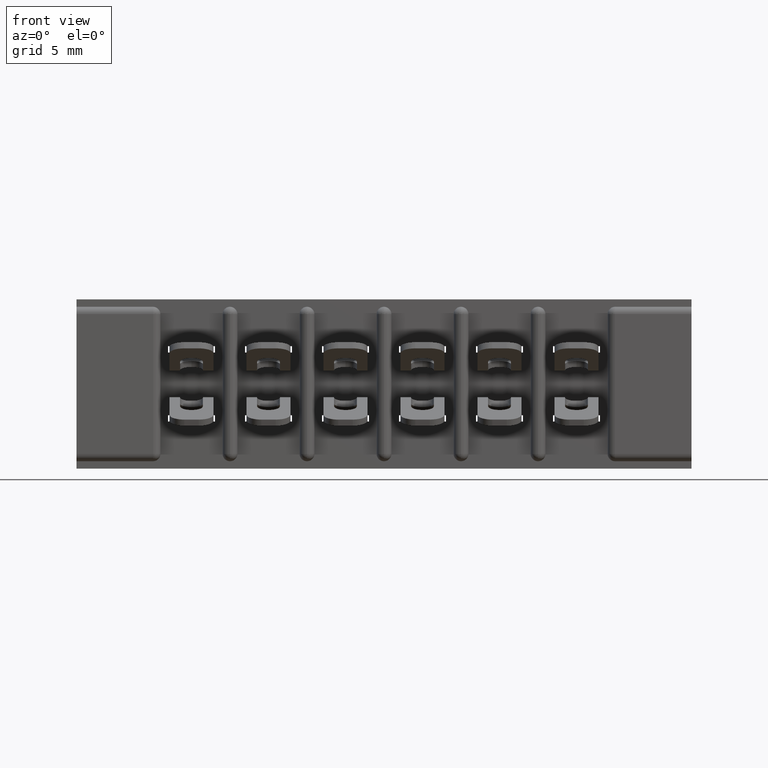
[diagram: clean part render]
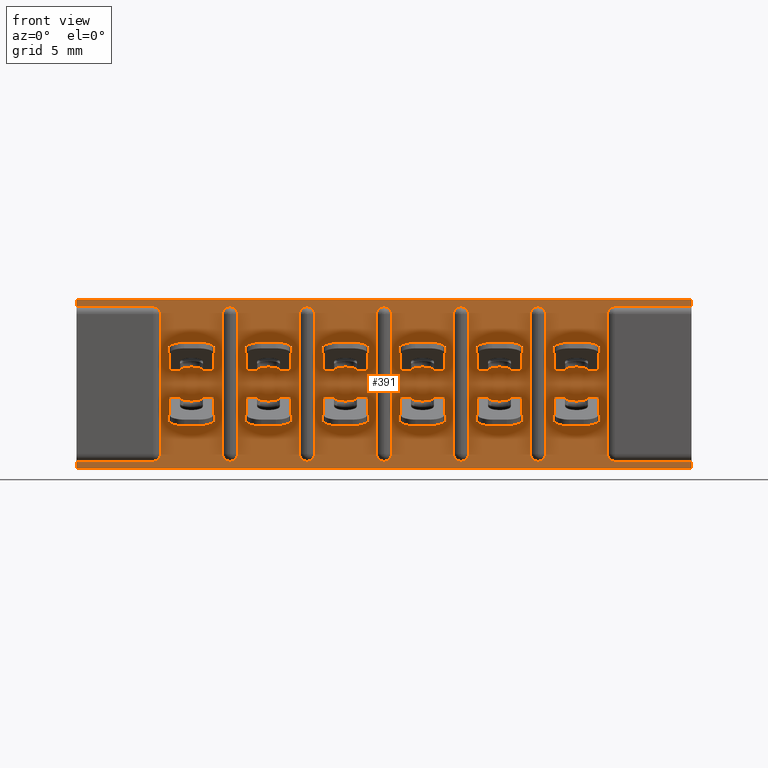
[diagram: same view with one face highlighted and labeled with its STEP entity id]
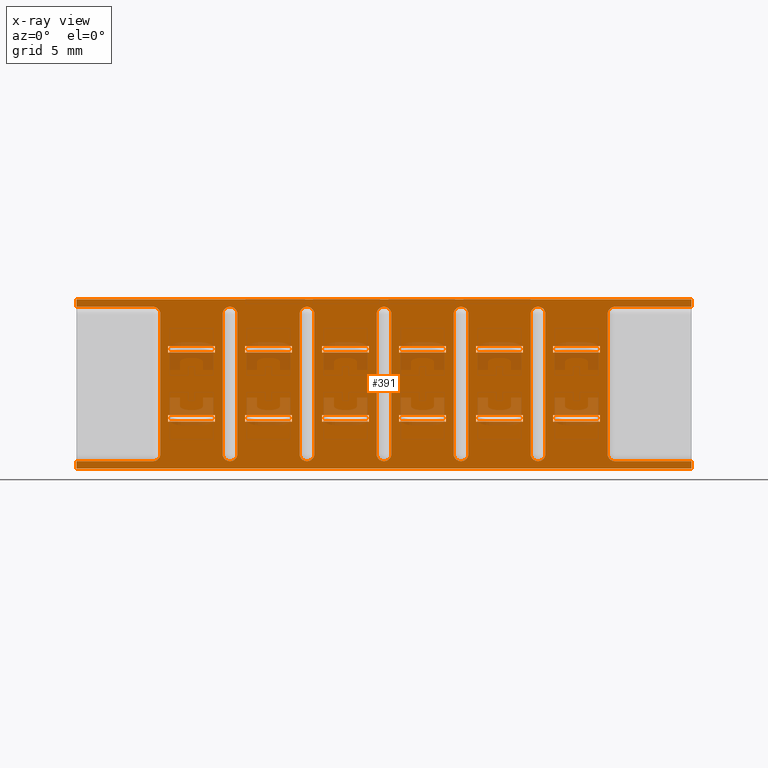
[diagram: x-ray of the same camera — body ghosted, the highlighted face saturated]
A machine part, front view. The second image highlights one B-rep face of the part: STEP entity #391.
The next image is the same camera in x-ray: the body ghosted, the highlighted face saturated — about 12% of this face is hidden behind the body in this view.
In plain terms, the highlighted planar face has unit normal (0, 1, 0).
Its self-contained STEP definition (entity closure, byte-faithful):
#5 = EDGE_CURVE ( 'NONE', #4426, #7489, #7232, .T. ) ;
#9 = VERTEX_POINT ( 'NONE', #8492 ) ;
#14 = DIRECTION ( 'NONE',  ( 0.0000000000000000000, 0.0000000000000000000, 1.000000000000000000 ) ) ;
#23 = CARTESIAN_POINT ( 'NONE',  ( 0.2979999999999999300, 0.03100000000000000000, -0.01499999999999997700 ) ) ;
#28 = CARTESIAN_POINT ( 'NONE',  ( 1.046500000000002000, 0.03100000000000002400, -0.05850000000000024600 ) ) ;
#39 = VERTEX_POINT ( 'NONE', #7835 ) ;
#55 = CARTESIAN_POINT ( 'NONE',  ( 0.9515000000000014600, 0.03100000000000000000, -0.09500000000000020900 ) ) ;
#111 = VERTEX_POINT ( 'NONE', #7807 ) ;
#115 = LINE ( 'NONE', #206, #10028 ) ;
#140 = EDGE_LOOP ( 'NONE', ( #2560, #8582, #5048, #10692 ) ) ;
#150 = ORIENTED_EDGE ( 'NONE', *, *, #173, .T. ) ;
#164 = ORIENTED_EDGE ( 'NONE', *, *, #1726, .T. ) ;
#173 = EDGE_CURVE ( 'NONE', #5584, #10307, #1230, .T. ) ;
#178 = DIRECTION ( 'NONE',  ( 0.0000000000000000000, -0.0000000000000000000, 1.000000000000000000 ) ) ;
#206 = CARTESIAN_POINT ( 'NONE',  ( 0.6395000000000015100, 0.03100000000000000000, -0.1080000000000002100 ) ) ;
#234 = ORIENTED_EDGE ( 'NONE', *, *, #8018, .T. ) ;
#238 = DIRECTION ( 'NONE',  ( -1.000000000000000000, 0.0000000000000000000, 1.078361050130624000E-015 ) ) ;
#239 = LINE ( 'NONE', #1396, #771 ) ;
#247 = LINE ( 'NONE', #7850, #5966 ) ;
#271 = VECTOR ( 'NONE', #8228, 39.37007874015748100 ) ;
#273 = VERTEX_POINT ( 'NONE', #1027 ) ;
#316 = DIRECTION ( 'NONE',  ( 0.0000000000000000000, 1.000000000000000000, 0.0000000000000000000 ) ) ;
#388 = LINE ( 'NONE', #7702, #8803 ) ;
#391 = ADVANCED_FACE ( 'NONE', ( #2565, #1219, #6139, #6944, #11238, #934, #4893, #2032, #10563, #8278, #5996, #8962, #7218, #4352, #3664, #8142, #5728, #1356 ), #3748, .F. ) ;
#397 = EDGE_CURVE ( 'NONE', #1757, #1095, #8676, .T. ) ;
#398 = CIRCLE ( 'NONE', #6381, 0.01499999999999999900 ) ;
#402 = VERTEX_POINT ( 'NONE', #7266 ) ;
#419 = LINE ( 'NONE', #2417, #5451 ) ;
#422 = ORIENTED_EDGE ( 'NONE', *, *, #2400, .F. ) ;
#431 = EDGE_CURVE ( 'NONE', #2196, #273, #7595, .T. ) ;
#457 = EDGE_CURVE ( 'NONE', #528, #4748, #5166, .T. ) ;
#467 = ORIENTED_EDGE ( 'NONE', *, *, #7904, .F. ) ;
#502 = CIRCLE ( 'NONE', #5126, 0.01500000000000001200 ) ;
#504 = CARTESIAN_POINT ( 'NONE',  ( 1.107500000000001500, 0.03100000000000000000, -0.1080000000000002100 ) ) ;
#510 = AXIS2_PLACEMENT_3D ( 'NONE', #1162, #8071, #10628 ) ;
#519 = ORIENTED_EDGE ( 'NONE', *, *, #5, .T. ) ;
#522 = VERTEX_POINT ( 'NONE', #6800 ) ;
#523 = CIRCLE ( 'NONE', #1457, 0.01500000000000001200 ) ;
#528 = VERTEX_POINT ( 'NONE', #1567 ) ;
#535 = CARTESIAN_POINT ( 'NONE',  ( 1.389000000000000200, 0.03100000000000000000, -0.3130000000000000600 ) ) ;
#549 = DIRECTION ( 'NONE',  ( 0.0000000000000000000, 0.0000000000000000000, -1.000000000000000000 ) ) ;
#565 = ORIENTED_EDGE ( 'NONE', *, *, #3847, .T. ) ;
#597 = CARTESIAN_POINT ( 'NONE',  ( 1.077000000000000200, 0.03100000000000000000, -0.3280000000000000100 ) ) ;
#610 = DIRECTION ( 'NONE',  ( 0.0000000000000000000, 1.000000000000000000, 0.0000000000000000000 ) ) ;
#633 = LINE ( 'NONE', #55, #7313 ) ;
#644 = EDGE_CURVE ( 'NONE', #7990, #5931, #7204, .T. ) ;
#645 = VECTOR ( 'NONE', #9806, 39.37007874015748100 ) ;
#650 = AXIS2_PLACEMENT_3D ( 'NONE', #8375, #6525, #9164 ) ;
#653 = CARTESIAN_POINT ( 'NONE',  ( 1.842000000000000700, 0.03100000000000000000, -0.3430000000000000300 ) ) ;
#664 = ORIENTED_EDGE ( 'NONE', *, *, #3644, .T. ) ;
#672 = VERTEX_POINT ( 'NONE', #8663 ) ;
#704 = AXIS2_PLACEMENT_3D ( 'NONE', #4365, #10400, #14 ) ;
#724 = EDGE_CURVE ( 'NONE', #7979, #7990, #523, .T. ) ;
#745 = VECTOR ( 'NONE', #178, 39.37007874015748100 ) ;
#748 = VERTEX_POINT ( 'NONE', #6201 ) ;
#757 = DIRECTION ( 'NONE',  ( 0.0000000000000000000, 1.000000000000000000, 0.0000000000000000000 ) ) ;
#771 = VECTOR ( 'NONE', #10975, 39.37007874015748100 ) ;
#780 = CIRCLE ( 'NONE', #10619, 0.01499999999999999900 ) ;
#786 = VECTOR ( 'NONE', #4256, 39.37007874015748100 ) ;
#826 = EDGE_CURVE ( 'NONE', #6339, #1202, #9495, .T. ) ;
#837 = CARTESIAN_POINT ( 'NONE',  ( 1.233000000000000300, 0.03100000000000000000, -0.3280000000000000100 ) ) ;
#859 = DIRECTION ( 'NONE',  ( 1.000000000000000000, -0.0000000000000000000, 1.797268416884331900E-015 ) ) ;
#893 = ORIENTED_EDGE ( 'NONE', *, *, #9144, .T. ) ;
#903 = EDGE_CURVE ( 'NONE', #8288, #6339, #115, .T. ) ;
#934 = FACE_BOUND ( 'NONE', #4652, .T. ) ;
#1002 = CIRCLE ( 'NONE', #6905, 0.01500000000000001200 ) ;
#1010 = EDGE_LOOP ( 'NONE', ( #4993, #10746, #10496, #8176, #2653, #164 ) ) ;
#1027 = CARTESIAN_POINT ( 'NONE',  ( 0.2979999999999999300, 0.03100000000000000000, -0.3430000000000000300 ) ) ;
#1039 = DIRECTION ( 'NONE',  ( -1.000000000000000000, -0.0000000000000000000, -0.0000000000000000000 ) ) ;
#1043 = EDGE_CURVE ( 'NONE', #1224, #4923, #7851, .T. ) ;
#1054 = EDGE_CURVE ( 'NONE', #10118, #6507, #3090, .T. ) ;
#1072 = DIRECTION ( 'NONE',  ( 0.0000000000000000000, -0.0000000000000000000, 1.000000000000000000 ) ) ;
#1095 = VERTEX_POINT ( 'NONE', #3111 ) ;
#1098 = VERTEX_POINT ( 'NONE', #8280 ) ;
#1101 = EDGE_CURVE ( 'NONE', #6326, #6033, #780, .T. ) ;
#1122 = VERTEX_POINT ( 'NONE', #1409 ) ;
#1124 = DIRECTION ( 'NONE',  ( 0.0000000000000000000, 1.000000000000000000, 0.0000000000000000000 ) ) ;
#1128 = CARTESIAN_POINT ( 'NONE',  ( 0.7345000000000019300, 0.03100000000000000000, -0.2480000000000000800 ) ) ;
#1139 = CARTESIAN_POINT ( 'NONE',  ( 1.263499999999999200, 0.03100000000000000000, -0.2480000000000002800 ) ) ;
#1154 = DIRECTION ( 'NONE',  ( 0.0000000000000000000, 1.000000000000000000, 0.0000000000000000000 ) ) ;
#1155 = VECTOR ( 'NONE', #1729, 39.37007874015748100 ) ;
#1162 = CARTESIAN_POINT ( 'NONE',  ( 1.842000000000000700, 0.03100000000000000000, -0.3430000000000000300 ) ) ;
#1180 = LINE ( 'NONE', #6078, #3192 ) ;
#1183 = VERTEX_POINT ( 'NONE', #8385 ) ;
#1197 = CARTESIAN_POINT ( 'NONE',  ( 1.389000000000000200, 0.03100000000000000000, -0.02999999999999997800 ) ) ;
#1202 = VERTEX_POINT ( 'NONE', #2502 ) ;
#1212 = LINE ( 'NONE', #3763, #2406 ) ;
#1219 = FACE_OUTER_BOUND ( 'NONE', #1936, .T. ) ;
#1224 = VERTEX_POINT ( 'NONE', #1584 ) ;
#1230 = LINE ( 'NONE', #9738, #2574 ) ;
#1231 = VERTEX_POINT ( 'NONE', #4229 ) ;
#1257 = VECTOR ( 'NONE', #10039, 39.37007874015748100 ) ;
#1260 = EDGE_CURVE ( 'NONE', #1095, #10167, #10829, .T. ) ;
#1263 = ORIENTED_EDGE ( 'NONE', *, *, #6685, .T. ) ;
#1265 = ORIENTED_EDGE ( 'NONE', *, *, #8662, .T. ) ;
#1268 = LINE ( 'NONE', #3206, #6190 ) ;
#1279 = CARTESIAN_POINT ( 'NONE',  ( 1.107499999999999300, 0.03100000000000000000, -0.2480000000000002800 ) ) ;
#1292 = EDGE_CURVE ( 'NONE', #2601, #3225, #5290, .T. ) ;
#1300 = VECTOR ( 'NONE', #3752, 39.37007874015748100 ) ;
#1356 = FACE_BOUND ( 'NONE', #8801, .T. ) ;
#1380 = DIRECTION ( 'NONE',  ( -1.000000000000000000, 0.0000000000000000000, 1.078361050130624000E-015 ) ) ;
#1381 = ORIENTED_EDGE ( 'NONE', *, *, #4912, .F. ) ;
#1385 = CARTESIAN_POINT ( 'NONE',  ( 0.6090000000000002100, 0.03100000000000000000, -0.3130000000000000600 ) ) ;
#1389 = CARTESIAN_POINT ( 'NONE',  ( 1.062000000000000300, 0.03100000000000002400, -0.4680000000000006900 ) ) ;
#1396 = CARTESIAN_POINT ( 'NONE',  ( 0.8905000000000020700, 0.03100000000000002400, -0.05850000000000024600 ) ) ;
#1398 = CARTESIAN_POINT ( 'NONE',  ( 0.7650000000000001200, 0.03100000000000000000, -0.3280000000000000100 ) ) ;
#1405 = CARTESIAN_POINT ( 'NONE',  ( 1.233000000000000300, 0.03100000000000000000, -0.3130000000000000600 ) ) ;
#1409 = CARTESIAN_POINT ( 'NONE',  ( 0.7955000000000014300, 0.03100000000000000000, -0.09500000000000020900 ) ) ;
#1437 = ORIENTED_EDGE ( 'NONE', *, *, #3889, .T. ) ;
#1455 = AXIS2_PLACEMENT_3D ( 'NONE', #535, #7495, #3151 ) ;
#1457 = AXIS2_PLACEMENT_3D ( 'NONE', #9693, #7980, #10472 ) ;
#1471 = DIRECTION ( 'NONE',  ( 0.0000000000000000000, 0.0000000000000000000, 1.000000000000000000 ) ) ;
#1472 = ORIENTED_EDGE ( 'NONE', *, *, #2311, .F. ) ;
#1483 = ORIENTED_EDGE ( 'NONE', *, *, #4025, .F. ) ;
#1488 = CARTESIAN_POINT ( 'NONE',  ( 0.5940000000000001900, 0.03100000000000002400, -0.4680000000000006900 ) ) ;
#1503 = VERTEX_POINT ( 'NONE', #3840 ) ;
#1517 = ORIENTED_EDGE ( 'NONE', *, *, #6340, .T. ) ;
#1529 = VECTOR ( 'NONE', #4905, 39.37007874015748100 ) ;
#1533 = CIRCLE ( 'NONE', #5522, 0.01500000000000001200 ) ;
#1535 = CARTESIAN_POINT ( 'NONE',  ( 0.6395000000000017300, 0.03100000000000002400, -0.2350000000000002600 ) ) ;
#1556 = CARTESIAN_POINT ( 'NONE',  ( 1.544000000000000700, 0.03100000000000000000, -0.3430000000000000300 ) ) ;
#1567 = CARTESIAN_POINT ( 'NONE',  ( 0.4834999999999993200, 0.03100000000000000000, -0.2480000000000002800 ) ) ;
#1569 = VECTOR ( 'NONE', #5378, 39.37007874015748100 ) ;
#1573 = VECTOR ( 'NONE', #8507, 39.37007874015748100 ) ;
#1584 = CARTESIAN_POINT ( 'NONE',  ( 1.218000000000000200, 0.03100000000000002400, -0.3130000000000000600 ) ) ;
#1611 = CARTESIAN_POINT ( 'NONE',  ( 0.8905000000000020700, 0.03100000000000000000, -0.09500000000000032000 ) ) ;
#1616 = VECTOR ( 'NONE', #10147, 39.37007874015748100 ) ;
#1621 = DIRECTION ( 'NONE',  ( 0.0000000000000000000, 0.0000000000000000000, 1.000000000000000000 ) ) ;
#1623 = CARTESIAN_POINT ( 'NONE',  ( 1.544000000000000700, 0.03100000000000000000, 0.0000000000000000000 ) ) ;
#1631 = ORIENTED_EDGE ( 'NONE', *, *, #7852, .F. ) ;
#1651 = EDGE_CURVE ( 'NONE', #4748, #11118, #4599, .T. ) ;
#1652 = ORIENTED_EDGE ( 'NONE', *, *, #4420, .T. ) ;
#1691 = LINE ( 'NONE', #11236, #1155 ) ;
#1713 = EDGE_LOOP ( 'NONE', ( #3655, #10309, #6867, #422 ) ) ;
#1726 = EDGE_CURVE ( 'NONE', #2506, #9390, #6098, .T. ) ;
#1729 = DIRECTION ( 'NONE',  ( 0.0000000000000000000, 0.0000000000000000000, -1.000000000000000000 ) ) ;
#1738 = ORIENTED_EDGE ( 'NONE', *, *, #10669, .F. ) ;
#1740 = EDGE_CURVE ( 'NONE', #10118, #7610, #7183, .T. ) ;
#1745 = EDGE_LOOP ( 'NONE', ( #150, #1738, #3130, #11014 ) ) ;
#1757 = VERTEX_POINT ( 'NONE', #3267 ) ;
#1771 = AXIS2_PLACEMENT_3D ( 'NONE', #9073, #4747, #9785 ) ;
#1803 = CIRCLE ( 'NONE', #1455, 0.01500000000000001200 ) ;
#1809 = AXIS2_PLACEMENT_3D ( 'NONE', #1405, #7522, #4001 ) ;
#1819 = ORIENTED_EDGE ( 'NONE', *, *, #10011, .F. ) ;
#1849 = CARTESIAN_POINT ( 'NONE',  ( 1.202500000000001900, 0.03100000000000002400, -0.1080000000000001900 ) ) ;
#1902 = VERTEX_POINT ( 'NONE', #10659 ) ;
#1911 = DIRECTION ( 'NONE',  ( 0.0000000000000000000, 0.0000000000000000000, 1.000000000000000000 ) ) ;
#1926 = LINE ( 'NONE', #1389, #1257 ) ;
#1936 = EDGE_LOOP ( 'NONE', ( #9017, #234, #1263, #4756, #8533, #1265, #3413, #5500, #8687, #893, #11087, #9621, #2740, #6971, #2308, #7642 ) ) ;
#1978 = VECTOR ( 'NONE', #3177, 39.37007874015748100 ) ;
#1990 = LINE ( 'NONE', #9849, #5694 ) ;
#2006 = DIRECTION ( 'NONE',  ( 0.0000000000000000000, 1.000000000000000000, 0.0000000000000000000 ) ) ;
#2021 = VECTOR ( 'NONE', #8860, 39.37007874015748100 ) ;
#2025 = CARTESIAN_POINT ( 'NONE',  ( 1.218000000000000200, 0.03100000000000002400, -0.4680000000000006900 ) ) ;
#2032 = FACE_BOUND ( 'NONE', #1010, .T. ) ;
#2034 = CARTESIAN_POINT ( 'NONE',  ( 0.9210000000000000400, 0.03100000000000000000, -0.02999999999999997800 ) ) ;
#2079 = DIRECTION ( 'NONE',  ( 0.0000000000000000000, -0.0000000000000000000, 1.000000000000000000 ) ) ;
#2091 = DIRECTION ( 'NONE',  ( 0.0000000000000000000, -0.0000000000000000000, 1.000000000000000000 ) ) ;
#2102 = EDGE_CURVE ( 'NONE', #2432, #522, #5399, .T. ) ;
#2123 = CIRCLE ( 'NONE', #1809, 0.01500000000000001200 ) ;
#2128 = VERTEX_POINT ( 'NONE', #4723 ) ;
#2196 = VERTEX_POINT ( 'NONE', #7284 ) ;
#2239 = EDGE_CURVE ( 'NONE', #7958, #1122, #4851, .T. ) ;
#2245 = LINE ( 'NONE', #3972, #4012 ) ;
#2252 = AXIS2_PLACEMENT_3D ( 'NONE', #7819, #757, #9456 ) ;
#2286 = CARTESIAN_POINT ( 'NONE',  ( 0.4835000000000014800, 0.03100000000000000000, -0.09500000000000020900 ) ) ;
#2307 = CIRCLE ( 'NONE', #4033, 0.01499999999999999900 ) ;
#2308 = ORIENTED_EDGE ( 'NONE', *, *, #10098, .T. ) ;
#2311 = EDGE_CURVE ( 'NONE', #8573, #11220, #4174, .T. ) ;
#2316 = CARTESIAN_POINT ( 'NONE',  ( 0.7955000000000020900, 0.03100000000000002400, -0.05850000000000024600 ) ) ;
#2332 = DIRECTION ( 'NONE',  ( -1.000000000000000000, -0.0000000000000000000, -0.0000000000000000000 ) ) ;
#2340 = VECTOR ( 'NONE', #7884, 39.37007874015748100 ) ;
#2356 = AXIS2_PLACEMENT_3D ( 'NONE', #1385, #4882, #3013 ) ;
#2361 = DIRECTION ( 'NONE',  ( -1.000000000000000000, -0.0000000000000000000, -0.0000000000000000000 ) ) ;
#2368 = EDGE_CURVE ( 'NONE', #1202, #9366, #6894, .T. ) ;
#2400 = EDGE_CURVE ( 'NONE', #11118, #6832, #4986, .T. ) ;
#2406 = VECTOR ( 'NONE', #2091, 39.37007874015748100 ) ;
#2417 = CARTESIAN_POINT ( 'NONE',  ( 0.7955000000000020900, 0.03100000000000002400, -0.05850000000000024600 ) ) ;
#2432 = VERTEX_POINT ( 'NONE', #6871 ) ;
#2465 = VERTEX_POINT ( 'NONE', #5104 ) ;
#2502 = CARTESIAN_POINT ( 'NONE',  ( 0.7345000000000019300, 0.03100000000000000000, -0.09500000000000032000 ) ) ;
#2506 = VERTEX_POINT ( 'NONE', #7045 ) ;
#2552 = CARTESIAN_POINT ( 'NONE',  ( 0.2979999999999999300, 0.03100000000000000000, -0.3280000000000000100 ) ) ;
#2553 = CIRCLE ( 'NONE', #704, 0.01499999999999999900 ) ;
#2555 = CARTESIAN_POINT ( 'NONE',  ( 1.263499999999999200, 0.03100000000000000000, -0.2480000000000002800 ) ) ;
#2560 = ORIENTED_EDGE ( 'NONE', *, *, #6276, .T. ) ;
#2565 = FACE_BOUND ( 'NONE', #11134, .T. ) ;
#2574 = VECTOR ( 'NONE', #1072, 39.37007874015748100 ) ;
#2581 = CARTESIAN_POINT ( 'NONE',  ( 1.107500000000001500, 0.03100000000000000000, -0.09500000000000020900 ) ) ;
#2583 = EDGE_LOOP ( 'NONE', ( #6019, #10905, #10023, #7319 ) ) ;
#2601 = VERTEX_POINT ( 'NONE', #6262 ) ;
#2602 = DIRECTION ( 'NONE',  ( 0.0000000000000000000, 0.0000000000000000000, -1.000000000000000000 ) ) ;
#2614 = AXIS2_PLACEMENT_3D ( 'NONE', #4648, #6414, #8125 ) ;
#2626 = CIRCLE ( 'NONE', #8842, 0.01499999999999999900 ) ;
#2653 = ORIENTED_EDGE ( 'NONE', *, *, #10050, .T. ) ;
#2655 = LINE ( 'NONE', #10657, #7032 ) ;
#2660 = VECTOR ( 'NONE', #9395, 39.37007874015748100 ) ;
#2724 = CARTESIAN_POINT ( 'NONE',  ( 0.4835000000000017600, 0.03100000000000002400, -0.2350000000000002600 ) ) ;
#2740 = ORIENTED_EDGE ( 'NONE', *, *, #4742, .T. ) ;
#2750 = ORIENTED_EDGE ( 'NONE', *, *, #826, .F. ) ;
#2790 = DIRECTION ( 'NONE',  ( 0.0000000000000000000, 0.0000000000000000000, 1.000000000000000000 ) ) ;
#2796 = CARTESIAN_POINT ( 'NONE',  ( 1.107500000000002100, 0.03100000000000002400, -0.1080000000000002100 ) ) ;
#2814 = EDGE_CURVE ( 'NONE', #9812, #4220, #3890, .T. ) ;
#2835 = CARTESIAN_POINT ( 'NONE',  ( 0.6394999999999992900, 0.03100000000000000000, -0.2480000000000002800 ) ) ;
#2839 = EDGE_CURVE ( 'NONE', #4877, #4765, #1002, .T. ) ;
#2849 = CARTESIAN_POINT ( 'NONE',  ( 0.7955000000000014300, 0.03100000000000000000, -0.1080000000000002100 ) ) ;
#2882 = ORIENTED_EDGE ( 'NONE', *, *, #9444, .F. ) ;
#2909 = VECTOR ( 'NONE', #2361, 39.37007874015748100 ) ;
#2927 = DIRECTION ( 'NONE',  ( 0.0000000000000000000, -0.0000000000000000000, 1.000000000000000000 ) ) ;
#2935 = CARTESIAN_POINT ( 'NONE',  ( 1.233000000000000300, 0.03100000000000000000, -0.01499999999999997700 ) ) ;
#2957 = EDGE_CURVE ( 'NONE', #9, #9046, #6356, .T. ) ;
#2966 = VECTOR ( 'NONE', #5040, 39.37007874015748100 ) ;
#3013 = DIRECTION ( 'NONE',  ( 0.0000000000000000000, 0.0000000000000000000, 1.000000000000000000 ) ) ;
#3023 = EDGE_LOOP ( 'NONE', ( #3794, #3400, #2750, #6575 ) ) ;
#3031 = LINE ( 'NONE', #9126, #7919 ) ;
#3032 = CARTESIAN_POINT ( 'NONE',  ( 1.233000000000000300, 0.03100000000000000000, -0.02999999999999997800 ) ) ;
#3037 = LINE ( 'NONE', #10898, #5227 ) ;
#3058 = VERTEX_POINT ( 'NONE', #2286 ) ;
#3067 = EDGE_CURVE ( 'NONE', #7602, #1098, #2626, .T. ) ;
#3090 = LINE ( 'NONE', #9084, #3494 ) ;
#3098 = DIRECTION ( 'NONE',  ( 0.0000000000000000000, 1.000000000000000000, 0.0000000000000000000 ) ) ;
#3111 = CARTESIAN_POINT ( 'NONE',  ( 1.202500000000001900, 0.03100000000000000000, -0.2480000000000000800 ) ) ;
#3130 = ORIENTED_EDGE ( 'NONE', *, *, #8030, .F. ) ;
#3136 = VECTOR ( 'NONE', #7254, 39.37007874015748100 ) ;
#3140 = EDGE_CURVE ( 'NONE', #748, #8573, #2245, .T. ) ;
#3141 = CARTESIAN_POINT ( 'NONE',  ( 0.2979999999999999300, 0.03100000000000000000, -0.3430000000000000300 ) ) ;
#3143 = CARTESIAN_POINT ( 'NONE',  ( 0.7500000000000002200, 0.03100000000000002400, -0.02999999999999995400 ) ) ;
#3151 = DIRECTION ( 'NONE',  ( 0.0000000000000000000, 0.0000000000000000000, 1.000000000000000000 ) ) ;
#3169 = EDGE_CURVE ( 'NONE', #6839, #2432, #4689, .T. ) ;
#3172 = LINE ( 'NONE', #11105, #2909 ) ;
#3175 = LINE ( 'NONE', #4590, #4970 ) ;
#3177 = DIRECTION ( 'NONE',  ( 0.0000000000000000000, -0.0000000000000000000, 1.000000000000000000 ) ) ;
#3192 = VECTOR ( 'NONE', #5456, 39.37007874015748100 ) ;
#3206 = CARTESIAN_POINT ( 'NONE',  ( 0.7954999999999992100, 0.03100000000000000000, -0.2480000000000002800 ) ) ;
#3218 = AXIS2_PLACEMENT_3D ( 'NONE', #7995, #2006, #2790 ) ;
#3225 = VERTEX_POINT ( 'NONE', #1623 ) ;
#3226 = DIRECTION ( 'NONE',  ( 0.0000000000000000000, 1.000000000000000000, 0.0000000000000000000 ) ) ;
#3249 = EDGE_LOOP ( 'NONE', ( #565, #4731, #1483, #1819 ) ) ;
#3250 = ORIENTED_EDGE ( 'NONE', *, *, #10487, .T. ) ;
#3262 = VERTEX_POINT ( 'NONE', #6792 ) ;
#3267 = CARTESIAN_POINT ( 'NONE',  ( 1.107499999999999300, 0.03100000000000000000, -0.2480000000000002800 ) ) ;
#3288 = DIRECTION ( 'NONE',  ( 0.0000000000000000000, 1.000000000000000000, 0.0000000000000000000 ) ) ;
#3295 = EDGE_CURVE ( 'NONE', #3225, #7280, #3172, .T. ) ;
#3296 = CARTESIAN_POINT ( 'NONE',  ( 1.202500000000001900, 0.03100000000000002400, -0.05850000000000024600 ) ) ;
#3355 = DIRECTION ( 'NONE',  ( 0.0000000000000000000, 0.0000000000000000000, 1.000000000000000000 ) ) ;
#3376 = ORIENTED_EDGE ( 'NONE', *, *, #7735, .T. ) ;
#3379 = EDGE_CURVE ( 'NONE', #522, #7902, #6333, .T. ) ;
#3400 = ORIENTED_EDGE ( 'NONE', *, *, #2368, .F. ) ;
#3413 = ORIENTED_EDGE ( 'NONE', *, *, #8636, .F. ) ;
#3421 = CARTESIAN_POINT ( 'NONE',  ( 0.9210000000000000400, 0.03100000000000000000, -0.01499999999999997700 ) ) ;
#3473 = DIRECTION ( 'NONE',  ( 0.0000000000000000000, 1.000000000000000000, 0.0000000000000000000 ) ) ;
#3494 = VECTOR ( 'NONE', #5543, 39.37007874015748100 ) ;
#3545 = CIRCLE ( 'NONE', #9331, 0.01500000000000001200 ) ;
#3566 = ORIENTED_EDGE ( 'NONE', *, *, #9182, .T. ) ;
#3579 = VECTOR ( 'NONE', #6948, 39.37007874015748100 ) ;
#3604 = VERTEX_POINT ( 'NONE', #4908 ) ;
#3627 = EDGE_CURVE ( 'NONE', #9822, #7379, #3031, .T. ) ;
#3628 = LINE ( 'NONE', #8637, #7700 ) ;
#3644 = EDGE_CURVE ( 'NONE', #2128, #4426, #1533, .T. ) ;
#3655 = ORIENTED_EDGE ( 'NONE', *, *, #1651, .F. ) ;
#3664 = FACE_BOUND ( 'NONE', #10882, .T. ) ;
#3743 = ORIENTED_EDGE ( 'NONE', *, *, #644, .T. ) ;
#3748 = PLANE ( 'NONE',  #510 ) ;
#3752 = DIRECTION ( 'NONE',  ( 0.0000000000000000000, -0.0000000000000000000, 1.000000000000000000 ) ) ;
#3763 = CARTESIAN_POINT ( 'NONE',  ( 1.107500000000002100, 0.03100000000000002400, -0.05850000000000024600 ) ) ;
#3788 = DIRECTION ( 'NONE',  ( -1.000000000000000000, 0.0000000000000000000, -3.594536833768746400E-016 ) ) ;
#3790 = CARTESIAN_POINT ( 'NONE',  ( 0.6395000000000020700, 0.03100000000000002400, -0.05850000000000024600 ) ) ;
#3794 = ORIENTED_EDGE ( 'NONE', *, *, #5482, .T. ) ;
#3795 = VECTOR ( 'NONE', #1621, 39.37007874015748100 ) ;
#3796 = VERTEX_POINT ( 'NONE', #1849 ) ;
#3808 = CARTESIAN_POINT ( 'NONE',  ( 1.248000000000000000, 0.03100000000000002400, -0.3130000000000000600 ) ) ;
#3835 = VECTOR ( 'NONE', #8456, 39.37007874015748100 ) ;
#3840 = CARTESIAN_POINT ( 'NONE',  ( 0.4530000000000003500, 0.03100000000000000000, -0.3280000000000000100 ) ) ;
#3847 = EDGE_CURVE ( 'NONE', #9205, #9793, #8800, .T. ) ;
#3889 = EDGE_CURVE ( 'NONE', #4826, #8439, #10213, .T. ) ;
#3890 = LINE ( 'NONE', #6859, #10649 ) ;
#3891 = ORIENTED_EDGE ( 'NONE', *, *, #5974, .F. ) ;
#3914 = ORIENTED_EDGE ( 'NONE', *, *, #3627, .F. ) ;
#3949 = VECTOR ( 'NONE', #5897, 39.37007874015748100 ) ;
#3953 = CARTESIAN_POINT ( 'NONE',  ( 0.7500000000000002200, 0.03100000000000002400, -0.3130000000000000600 ) ) ;
#3959 = ORIENTED_EDGE ( 'NONE', *, *, #8262, .T. ) ;
#3972 = CARTESIAN_POINT ( 'NONE',  ( 0.8905000000000020700, 0.03100000000000002400, -0.05850000000000024600 ) ) ;
#3974 = CARTESIAN_POINT ( 'NONE',  ( 0.7955000000000014300, 0.03100000000000000000, -0.09500000000000020900 ) ) ;
#3988 = VECTOR ( 'NONE', #10446, 39.37007874015748100 ) ;
#4001 = DIRECTION ( 'NONE',  ( 0.0000000000000000000, 0.0000000000000000000, 1.000000000000000000 ) ) ;
#4012 = VECTOR ( 'NONE', #9248, 39.37007874015748100 ) ;
#4018 = LINE ( 'NONE', #10789, #1300 ) ;
#4025 = EDGE_CURVE ( 'NONE', #3796, #5087, #4219, .T. ) ;
#4028 = DIRECTION ( 'NONE',  ( -1.000000000000000000, 0.0000000000000000000, -3.594536833768746400E-016 ) ) ;
#4033 = AXIS2_PLACEMENT_3D ( 'NONE', #10919, #3288, #1471 ) ;
#4040 = DIRECTION ( 'NONE',  ( -1.000000000000000000, 0.0000000000000000000, -3.594536833768746400E-016 ) ) ;
#4059 = EDGE_CURVE ( 'NONE', #10167, #8571, #6947, .T. ) ;
#4076 = DIRECTION ( 'NONE',  ( 0.0000000000000000000, 0.0000000000000000000, 1.000000000000000000 ) ) ;
#4087 = EDGE_CURVE ( 'NONE', #9046, #8634, #7924, .T. ) ;
#4155 = DIRECTION ( 'NONE',  ( 0.0000000000000000000, -0.0000000000000000000, 1.000000000000000000 ) ) ;
#4174 = LINE ( 'NONE', #5701, #1573 ) ;
#4196 = DIRECTION ( 'NONE',  ( 0.0000000000000000000, 0.0000000000000000000, 1.000000000000000000 ) ) ;
#4219 = LINE ( 'NONE', #4672, #271 ) ;
#4220 = VERTEX_POINT ( 'NONE', #5197 ) ;
#4226 = LINE ( 'NONE', #8268, #1616 ) ;
#4229 = CARTESIAN_POINT ( 'NONE',  ( 1.358500000000001800, 0.03100000000000000000, -0.2480000000000000800 ) ) ;
#4236 = VERTEX_POINT ( 'NONE', #1535 ) ;
#4256 = DIRECTION ( 'NONE',  ( 0.0000000000000000000, 0.0000000000000000000, 1.000000000000000000 ) ) ;
#4298 = ORIENTED_EDGE ( 'NONE', *, *, #5144, .T. ) ;
#4306 = CARTESIAN_POINT ( 'NONE',  ( 0.6090000000000002100, 0.03100000000000000000, -0.3280000000000000100 ) ) ;
#4351 = DIRECTION ( 'NONE',  ( -1.000000000000000000, 0.0000000000000000000, 1.078361050130624000E-015 ) ) ;
#4352 = FACE_BOUND ( 'NONE', #1745, .T. ) ;
#4365 = CARTESIAN_POINT ( 'NONE',  ( 0.9210000000000000400, 0.03100000000000002400, -0.02999999999999995400 ) ) ;
#4380 = CIRCLE ( 'NONE', #8314, 0.01500000000000001200 ) ;
#4393 = VERTEX_POINT ( 'NONE', #10541 ) ;
#4408 = CARTESIAN_POINT ( 'NONE',  ( 1.107500000000001500, 0.03100000000000000000, -0.09500000000000020900 ) ) ;
#4420 = EDGE_CURVE ( 'NONE', #7288, #111, #2553, .T. ) ;
#4426 = VERTEX_POINT ( 'NONE', #4509 ) ;
#4427 = ORIENTED_EDGE ( 'NONE', *, *, #10300, .F. ) ;
#4458 = VECTOR ( 'NONE', #2079, 39.37007874015748100 ) ;
#4468 = AXIS2_PLACEMENT_3D ( 'NONE', #1197, #1154, #8939 ) ;
#4501 = ORIENTED_EDGE ( 'NONE', *, *, #2839, .T. ) ;
#4502 = CARTESIAN_POINT ( 'NONE',  ( 0.9515000000000014600, 0.03100000000000000000, -0.1080000000000002100 ) ) ;
#4509 = CARTESIAN_POINT ( 'NONE',  ( 0.9060000000000001400, 0.03100000000000002400, -0.3130000000000000600 ) ) ;
#4510 = LINE ( 'NONE', #5546, #3136 ) ;
#4524 = LINE ( 'NONE', #8334, #10199 ) ;
#4542 = VECTOR ( 'NONE', #4076, 39.37007874015748100 ) ;
#4551 = CARTESIAN_POINT ( 'NONE',  ( 0.5785000000000020100, 0.03100000000000002400, -0.1080000000000001900 ) ) ;
#4565 = EDGE_LOOP ( 'NONE', ( #7119, #10802, #4427, #3891 ) ) ;
#4579 = CARTESIAN_POINT ( 'NONE',  ( 0.6090000000000002100, 0.03100000000000000000, -0.3130000000000000600 ) ) ;
#4590 = CARTESIAN_POINT ( 'NONE',  ( 1.842000000000000700, 0.03100000000000000000, -0.3280000000000000100 ) ) ;
#4597 = DIRECTION ( 'NONE',  ( 0.0000000000000000000, -0.0000000000000000000, 1.000000000000000000 ) ) ;
#4599 = LINE ( 'NONE', #5742, #8657 ) ;
#4604 = VECTOR ( 'NONE', #10148, 39.37007874015748100 ) ;
#4635 = AXIS2_PLACEMENT_3D ( 'NONE', #3032, #3098, #3355 ) ;
#4648 = CARTESIAN_POINT ( 'NONE',  ( 1.077000000000000200, 0.03100000000000000000, -0.02999999999999997800 ) ) ;
#4652 = EDGE_LOOP ( 'NONE', ( #10293, #467, #1517, #1472 ) ) ;
#4663 = CARTESIAN_POINT ( 'NONE',  ( 1.263500000000001400, 0.03100000000000000000, -0.2350000000000002600 ) ) ;
#4672 = CARTESIAN_POINT ( 'NONE',  ( 1.202500000000001900, 0.03100000000000002400, -0.05850000000000024600 ) ) ;
#4673 = CIRCLE ( 'NONE', #650, 0.01500000000000001200 ) ;
#4689 = LINE ( 'NONE', #8353, #11045 ) ;
#4693 = EDGE_CURVE ( 'NONE', #6033, #672, #7712, .T. ) ;
#4723 = CARTESIAN_POINT ( 'NONE',  ( 0.9210000000000000400, 0.03100000000000000000, -0.3280000000000000100 ) ) ;
#4731 = ORIENTED_EDGE ( 'NONE', *, *, #10959, .F. ) ;
#4742 = EDGE_CURVE ( 'NONE', #7610, #2465, #388, .T. ) ;
#4747 = DIRECTION ( 'NONE',  ( 0.0000000000000000000, 1.000000000000000000, 0.0000000000000000000 ) ) ;
#4748 = VERTEX_POINT ( 'NONE', #9497 ) ;
#4756 = ORIENTED_EDGE ( 'NONE', *, *, #7476, .T. ) ;
#4765 = VERTEX_POINT ( 'NONE', #837 ) ;
#4770 = VERTEX_POINT ( 'NONE', #4306 ) ;
#4785 = CARTESIAN_POINT ( 'NONE',  ( 0.9515000000000014600, 0.03100000000000000000, -0.09500000000000020900 ) ) ;
#4826 = VERTEX_POINT ( 'NONE', #1139 ) ;
#4828 = ORIENTED_EDGE ( 'NONE', *, *, #9877, .T. ) ;
#4835 = DIRECTION ( 'NONE',  ( 0.0000000000000000000, 1.000000000000000000, 0.0000000000000000000 ) ) ;
#4836 = LINE ( 'NONE', #6247, #745 ) ;
#4844 = EDGE_CURVE ( 'NONE', #1757, #8571, #1212, .T. ) ;
#4847 = LINE ( 'NONE', #4953, #1978 ) ;
#4851 = LINE ( 'NONE', #3974, #10934 ) ;
#4863 = CARTESIAN_POINT ( 'NONE',  ( 0.5785000000000020100, 0.03100000000000002400, -0.2350000000000002400 ) ) ;
#4871 = DIRECTION ( 'NONE',  ( 0.0000000000000000000, 0.0000000000000000000, 1.000000000000000000 ) ) ;
#4877 = VERTEX_POINT ( 'NONE', #3808 ) ;
#4882 = DIRECTION ( 'NONE',  ( 0.0000000000000000000, 1.000000000000000000, 0.0000000000000000000 ) ) ;
#4893 = FACE_BOUND ( 'NONE', #4565, .T. ) ;
#4897 = CARTESIAN_POINT ( 'NONE',  ( 0.9514999999999992400, 0.03100000000000000000, -0.2480000000000002800 ) ) ;
#4905 = DIRECTION ( 'NONE',  ( 0.0000000000000000000, -0.0000000000000000000, 1.000000000000000000 ) ) ;
#4908 = CARTESIAN_POINT ( 'NONE',  ( 0.7800000000000001400, 0.03100000000000002400, -0.3130000000000000600 ) ) ;
#4912 = EDGE_CURVE ( 'NONE', #10303, #4220, #10955, .T. ) ;
#4923 = VERTEX_POINT ( 'NONE', #6523 ) ;
#4953 = CARTESIAN_POINT ( 'NONE',  ( 1.263500000000002100, 0.03100000000000002400, -0.05850000000000024600 ) ) ;
#4970 = VECTOR ( 'NONE', #10713, 39.37007874015748100 ) ;
#4986 = LINE ( 'NONE', #6074, #8227 ) ;
#4993 = ORIENTED_EDGE ( 'NONE', *, *, #7392, .T. ) ;
#5003 = LINE ( 'NONE', #6665, #10942 ) ;
#5018 = CARTESIAN_POINT ( 'NONE',  ( 1.232999999999999900, 0.03100000000000000000, -0.3130000000000000600 ) ) ;
#5040 = DIRECTION ( 'NONE',  ( 1.000000000000000000, 0.0000000000000000000, 1.797268416884331900E-015 ) ) ;
#5048 = ORIENTED_EDGE ( 'NONE', *, *, #2102, .F. ) ;
#5087 = VERTEX_POINT ( 'NONE', #7619 ) ;
#5104 = CARTESIAN_POINT ( 'NONE',  ( 0.4680000000000001900, 0.03100000000000002400, -0.3130000000000000600 ) ) ;
#5126 = AXIS2_PLACEMENT_3D ( 'NONE', #9364, #7689, #7655 ) ;
#5144 = EDGE_CURVE ( 'NONE', #1183, #3058, #7580, .T. ) ;
#5146 = EDGE_CURVE ( 'NONE', #111, #402, #6389, .T. ) ;
#5150 = CARTESIAN_POINT ( 'NONE',  ( 0.6394999999999992900, 0.03100000000000000000, -0.2480000000000002800 ) ) ;
#5166 = LINE ( 'NONE', #9359, #2966 ) ;
#5191 = DIRECTION ( 'NONE',  ( 0.0000000000000000000, 0.0000000000000000000, 1.000000000000000000 ) ) ;
#5197 = CARTESIAN_POINT ( 'NONE',  ( 0.9515000000000019000, 0.03100000000000002400, -0.2350000000000002600 ) ) ;
#5207 = CARTESIAN_POINT ( 'NONE',  ( 1.092000000000000100, 0.03100000000000002400, -0.4680000000000006900 ) ) ;
#5220 = CARTESIAN_POINT ( 'NONE',  ( 0.7500000000000002200, 0.03100000000000002400, -0.4680000000000006900 ) ) ;
#5227 = VECTOR ( 'NONE', #4040, 39.37007874015748100 ) ;
#5288 = EDGE_LOOP ( 'NONE', ( #4298, #10660, #3914, #2882 ) ) ;
#5290 = LINE ( 'NONE', #1556, #3795 ) ;
#5312 = DIRECTION ( 'NONE',  ( -1.000000000000000000, 0.0000000000000000000, 1.078361050130624000E-015 ) ) ;
#5320 = ORIENTED_EDGE ( 'NONE', *, *, #8323, .T. ) ;
#5346 = DIRECTION ( 'NONE',  ( 1.000000000000000000, -0.0000000000000000000, 1.797268416884373200E-016 ) ) ;
#5361 = CARTESIAN_POINT ( 'NONE',  ( 1.263500000000002100, 0.03100000000000002400, -0.05850000000000024600 ) ) ;
#5377 = CARTESIAN_POINT ( 'NONE',  ( 1.263500000000001400, 0.03100000000000000000, -0.09500000000000020900 ) ) ;
#5378 = DIRECTION ( 'NONE',  ( 1.000000000000000000, -0.0000000000000000000, 1.797268416884373200E-016 ) ) ;
#5391 = VERTEX_POINT ( 'NONE', #5431 ) ;
#5399 = LINE ( 'NONE', #6579, #9729 ) ;
#5400 = VERTEX_POINT ( 'NONE', #8072 ) ;
#5415 = ORIENTED_EDGE ( 'NONE', *, *, #5602, .T. ) ;
#5418 = CARTESIAN_POINT ( 'NONE',  ( 0.7345000000000019300, 0.03100000000000002400, -0.05850000000000024600 ) ) ;
#5431 = CARTESIAN_POINT ( 'NONE',  ( 1.046500000000002000, 0.03100000000000000000, -0.2480000000000000800 ) ) ;
#5451 = VECTOR ( 'NONE', #8466, 39.37007874015748100 ) ;
#5456 = DIRECTION ( 'NONE',  ( -1.000000000000000000, -0.0000000000000000000, 1.078361050130624000E-015 ) ) ;
#5465 = ORIENTED_EDGE ( 'NONE', *, *, #1260, .F. ) ;
#5482 = EDGE_CURVE ( 'NONE', #8288, #9366, #6654, .T. ) ;
#5488 = LINE ( 'NONE', #28, #3988 ) ;
#5500 = ORIENTED_EDGE ( 'NONE', *, *, #1292, .T. ) ;
#5522 = AXIS2_PLACEMENT_3D ( 'NONE', #10920, #4835, #8467 ) ;
#5535 = EDGE_CURVE ( 'NONE', #528, #6832, #1990, .T. ) ;
#5543 = DIRECTION ( 'NONE',  ( -1.000000000000000000, -0.0000000000000000000, -0.0000000000000000000 ) ) ;
#5546 = CARTESIAN_POINT ( 'NONE',  ( 1.842000000000000700, 0.03100000000000000000, -0.01499999999999997700 ) ) ;
#5579 = CARTESIAN_POINT ( 'NONE',  ( 1.374000000000000100, 0.03100000000000002400, -0.02999999999999995400 ) ) ;
#5584 = VERTEX_POINT ( 'NONE', #5843 ) ;
#5602 = EDGE_CURVE ( 'NONE', #6603, #4877, #5003, .T. ) ;
#5683 = CIRCLE ( 'NONE', #4635, 0.01499999999999999900 ) ;
#5694 = VECTOR ( 'NONE', #7328, 39.37007874015748100 ) ;
#5701 = CARTESIAN_POINT ( 'NONE',  ( 0.7955000000000014300, 0.03100000000000000000, -0.2350000000000002600 ) ) ;
#5704 = DIRECTION ( 'NONE',  ( 1.000000000000000000, -0.0000000000000000000, 1.797268416884373200E-016 ) ) ;
#5707 = DIRECTION ( 'NONE',  ( 0.0000000000000000000, 0.0000000000000000000, 1.000000000000000000 ) ) ;
#5709 = VECTOR ( 'NONE', #9672, 39.37007874015748100 ) ;
#5711 = EDGE_LOOP ( 'NONE', ( #5465, #9916, #9399, #7151 ) ) ;
#5728 = FACE_BOUND ( 'NONE', #140, .T. ) ;
#5732 = CIRCLE ( 'NONE', #2356, 0.01500000000000001200 ) ;
#5742 = CARTESIAN_POINT ( 'NONE',  ( 0.5785000000000020100, 0.03100000000000002400, -0.05850000000000024600 ) ) ;
#5775 = VERTEX_POINT ( 'NONE', #6910 ) ;
#5777 = CIRCLE ( 'NONE', #2614, 0.01499999999999999900 ) ;
#5788 = CARTESIAN_POINT ( 'NONE',  ( 0.9060000000000001400, 0.03100000000000002400, -0.4680000000000006900 ) ) ;
#5823 = CARTESIAN_POINT ( 'NONE',  ( 0.9360000000000000500, 0.03100000000000002400, -0.4680000000000006900 ) ) ;
#5842 = ORIENTED_EDGE ( 'NONE', *, *, #1043, .T. ) ;
#5843 = CARTESIAN_POINT ( 'NONE',  ( 0.9515000000000021200, 0.03100000000000002400, -0.1080000000000002100 ) ) ;
#5897 = DIRECTION ( 'NONE',  ( 0.0000000000000000000, 0.0000000000000000000, -1.000000000000000000 ) ) ;
#5911 = DIRECTION ( 'NONE',  ( 0.0000000000000000000, 0.0000000000000000000, -1.000000000000000000 ) ) ;
#5931 = VERTEX_POINT ( 'NONE', #6232 ) ;
#5966 = VECTOR ( 'NONE', #1039, 39.37007874015748100 ) ;
#5967 = EDGE_CURVE ( 'NONE', #7379, #3058, #1180, .T. ) ;
#5974 = EDGE_CURVE ( 'NONE', #6409, #3262, #7308, .T. ) ;
#5996 = FACE_BOUND ( 'NONE', #3023, .T. ) ;
#5999 = EDGE_CURVE ( 'NONE', #6704, #5400, #2655, .T. ) ;
#6019 = ORIENTED_EDGE ( 'NONE', *, *, #5999, .F. ) ;
#6033 = VERTEX_POINT ( 'NONE', #9685 ) ;
#6048 = EDGE_CURVE ( 'NONE', #5584, #9918, #10252, .T. ) ;
#6074 = CARTESIAN_POINT ( 'NONE',  ( 0.4835000000000014800, 0.03100000000000000000, -0.2350000000000002600 ) ) ;
#6078 = CARTESIAN_POINT ( 'NONE',  ( 0.4835000000000014800, 0.03100000000000000000, -0.09500000000000020900 ) ) ;
#6098 = LINE ( 'NONE', #1488, #2660 ) ;
#6125 = DIRECTION ( 'NONE',  ( 0.0000000000000000000, 0.0000000000000000000, 1.000000000000000000 ) ) ;
#6139 = FACE_BOUND ( 'NONE', #5711, .T. ) ;
#6190 = VECTOR ( 'NONE', #11135, 39.37007874015748100 ) ;
#6201 = CARTESIAN_POINT ( 'NONE',  ( 0.8905000000000020700, 0.03100000000000000000, -0.2480000000000000800 ) ) ;
#6203 = VERTEX_POINT ( 'NONE', #5579 ) ;
#6232 = CARTESIAN_POINT ( 'NONE',  ( 1.062000000000000300, 0.03100000000000002400, -0.3130000000000000600 ) ) ;
#6247 = CARTESIAN_POINT ( 'NONE',  ( 0.6395000000000020700, 0.03100000000000002400, -0.05850000000000024600 ) ) ;
#6262 = CARTESIAN_POINT ( 'NONE',  ( 1.544000000000000700, 0.03100000000000000000, -0.01499999999999997700 ) ) ;
#6276 = EDGE_CURVE ( 'NONE', #6839, #7902, #4847, .T. ) ;
#6293 = EDGE_CURVE ( 'NONE', #4765, #1224, #2123, .T. ) ;
#6318 = LINE ( 'NONE', #7842, #2340 ) ;
#6326 = VERTEX_POINT ( 'NONE', #3143 ) ;
#6333 = LINE ( 'NONE', #5377, #7791 ) ;
#6339 = VERTEX_POINT ( 'NONE', #10993 ) ;
#6340 = EDGE_CURVE ( 'NONE', #11171, #11220, #9045, .T. ) ;
#6356 = CIRCLE ( 'NONE', #3218, 0.01499999999999999900 ) ;
#6381 = AXIS2_PLACEMENT_3D ( 'NONE', #2034, #1124, #9770 ) ;
#6385 = CARTESIAN_POINT ( 'NONE',  ( 0.5785000000000020100, 0.03100000000000000000, -0.09500000000000032000 ) ) ;
#6389 = LINE ( 'NONE', #5823, #4604 ) ;
#6400 = CARTESIAN_POINT ( 'NONE',  ( 1.107500000000002100, 0.03100000000000002400, -0.05850000000000024600 ) ) ;
#6409 = VERTEX_POINT ( 'NONE', #7122 ) ;
#6414 = DIRECTION ( 'NONE',  ( 0.0000000000000000000, 1.000000000000000000, 0.0000000000000000000 ) ) ;
#6459 = CARTESIAN_POINT ( 'NONE',  ( 0.4680000000000001900, 0.03100000000000002400, -0.02999999999999995400 ) ) ;
#6464 = LINE ( 'NONE', #7519, #1529 ) ;
#6481 = LINE ( 'NONE', #5150, #3579 ) ;
#6495 = EDGE_CURVE ( 'NONE', #10580, #273, #1691, .T. ) ;
#6506 = CARTESIAN_POINT ( 'NONE',  ( 1.389000000000000200, 0.03100000000000000000, -0.01499999999999997700 ) ) ;
#6507 = VERTEX_POINT ( 'NONE', #23 ) ;
#6523 = CARTESIAN_POINT ( 'NONE',  ( 1.218000000000000200, 0.03100000000000002400, -0.02999999999999995400 ) ) ;
#6525 = DIRECTION ( 'NONE',  ( 0.0000000000000000000, 1.000000000000000000, 0.0000000000000000000 ) ) ;
#6546 = ORIENTED_EDGE ( 'NONE', *, *, #5146, .T. ) ;
#6558 = VECTOR ( 'NONE', #10087, 39.37007874015748100 ) ;
#6575 = ORIENTED_EDGE ( 'NONE', *, *, #903, .F. ) ;
#6579 = CARTESIAN_POINT ( 'NONE',  ( 1.358500000000001800, 0.03100000000000002400, -0.05850000000000024600 ) ) ;
#6596 = EDGE_CURVE ( 'NONE', #10180, #4236, #4836, .T. ) ;
#6603 = VERTEX_POINT ( 'NONE', #7029 ) ;
#6654 = LINE ( 'NONE', #3790, #4458 ) ;
#6658 = DIRECTION ( 'NONE',  ( 0.0000000000000000000, 0.0000000000000000000, 1.000000000000000000 ) ) ;
#6665 = CARTESIAN_POINT ( 'NONE',  ( 1.248000000000000000, 0.03100000000000002400, -0.4680000000000006900 ) ) ;
#6666 = ORIENTED_EDGE ( 'NONE', *, *, #1101, .T. ) ;
#6685 = EDGE_CURVE ( 'NONE', #5775, #1902, #3175, .T. ) ;
#6687 = ORIENTED_EDGE ( 'NONE', *, *, #724, .T. ) ;
#6688 = VECTOR ( 'NONE', #9026, 39.37007874015748100 ) ;
#6704 = VERTEX_POINT ( 'NONE', #1128 ) ;
#6715 = CARTESIAN_POINT ( 'NONE',  ( 0.4530000000000003500, 0.03100000000000000000, -0.3130000000000000600 ) ) ;
#6767 = EDGE_CURVE ( 'NONE', #5391, #10303, #4018, .T. ) ;
#6792 = CARTESIAN_POINT ( 'NONE',  ( 0.8905000000000020700, 0.03100000000000002400, -0.1080000000000001900 ) ) ;
#6800 = CARTESIAN_POINT ( 'NONE',  ( 1.358500000000001800, 0.03100000000000000000, -0.09500000000000032000 ) ) ;
#6832 = VERTEX_POINT ( 'NONE', #2724 ) ;
#6839 = VERTEX_POINT ( 'NONE', #7897 ) ;
#6843 = CARTESIAN_POINT ( 'NONE',  ( 0.4530000000000001800, 0.03100000000000002400, -0.02999999999999995400 ) ) ;
#6859 = CARTESIAN_POINT ( 'NONE',  ( 0.9515000000000021200, 0.03100000000000002400, -0.05850000000000024600 ) ) ;
#6860 = VECTOR ( 'NONE', #2602, 39.37007874015748100 ) ;
#6863 = EDGE_LOOP ( 'NONE', ( #6666, #11133, #5320, #3250, #8279, #9420 ) ) ;
#6867 = ORIENTED_EDGE ( 'NONE', *, *, #5535, .T. ) ;
#6871 = CARTESIAN_POINT ( 'NONE',  ( 1.358500000000001800, 0.03100000000000002400, -0.1080000000000001900 ) ) ;
#6888 = CARTESIAN_POINT ( 'NONE',  ( 0.7955000000000016500, 0.03100000000000002400, -0.2350000000000002600 ) ) ;
#6894 = LINE ( 'NONE', #11107, #11187 ) ;
#6896 = DIRECTION ( 'NONE',  ( 0.0000000000000000000, 0.0000000000000000000, 1.000000000000000000 ) ) ;
#6905 = AXIS2_PLACEMENT_3D ( 'NONE', #5018, #3473, #6896 ) ;
#6910 = CARTESIAN_POINT ( 'NONE',  ( 1.544000000000000700, 0.03100000000000000000, -0.3280000000000000100 ) ) ;
#6944 = FACE_BOUND ( 'NONE', #3249, .T. ) ;
#6947 = LINE ( 'NONE', #10115, #10302 ) ;
#6948 = DIRECTION ( 'NONE',  ( 1.000000000000000000, -0.0000000000000000000, 1.797268416884331900E-015 ) ) ;
#6962 = ORIENTED_EDGE ( 'NONE', *, *, #11156, .T. ) ;
#6971 = ORIENTED_EDGE ( 'NONE', *, *, #9498, .T. ) ;
#6980 = CIRCLE ( 'NONE', #1771, 0.01500000000000001200 ) ;
#7029 = CARTESIAN_POINT ( 'NONE',  ( 1.248000000000000000, 0.03100000000000002400, -0.02999999999999995400 ) ) ;
#7032 = VECTOR ( 'NONE', #10696, 39.37007874015748100 ) ;
#7045 = CARTESIAN_POINT ( 'NONE',  ( 0.5940000000000001900, 0.03100000000000002400, -0.3130000000000000600 ) ) ;
#7119 = ORIENTED_EDGE ( 'NONE', *, *, #9139, .T. ) ;
#7122 = CARTESIAN_POINT ( 'NONE',  ( 0.7955000000000020900, 0.03100000000000002400, -0.1080000000000002100 ) ) ;
#7151 = ORIENTED_EDGE ( 'NONE', *, *, #4059, .F. ) ;
#7177 = CARTESIAN_POINT ( 'NONE',  ( 0.8905000000000020700, 0.03100000000000002400, -0.2350000000000002400 ) ) ;
#7183 = CIRCLE ( 'NONE', #8989, 0.01499999999999999900 ) ;
#7204 = CIRCLE ( 'NONE', #10968, 0.01500000000000001200 ) ;
#7218 = FACE_BOUND ( 'NONE', #6863, .T. ) ;
#7229 = VECTOR ( 'NONE', #5911, 39.37007874015748100 ) ;
#7232 = LINE ( 'NONE', #5788, #6558 ) ;
#7234 = EDGE_CURVE ( 'NONE', #10180, #6704, #6481, .T. ) ;
#7254 = DIRECTION ( 'NONE',  ( -1.000000000000000000, -0.0000000000000000000, -0.0000000000000000000 ) ) ;
#7266 = CARTESIAN_POINT ( 'NONE',  ( 0.9360000000000000500, 0.03100000000000002400, -0.3130000000000000600 ) ) ;
#7280 = VERTEX_POINT ( 'NONE', #9475 ) ;
#7284 = CARTESIAN_POINT ( 'NONE',  ( 1.544000000000000700, 0.03100000000000000000, -0.3430000000000000300 ) ) ;
#7288 = VERTEX_POINT ( 'NONE', #3421 ) ;
#7308 = LINE ( 'NONE', #2849, #1569 ) ;
#7313 = VECTOR ( 'NONE', #5312, 39.37007874015748100 ) ;
#7319 = ORIENTED_EDGE ( 'NONE', *, *, #7423, .F. ) ;
#7326 = CARTESIAN_POINT ( 'NONE',  ( 1.046500000000002000, 0.03100000000000002400, -0.1080000000000001900 ) ) ;
#7328 = DIRECTION ( 'NONE',  ( 0.0000000000000000000, 0.0000000000000000000, 1.000000000000000000 ) ) ;
#7356 = VECTOR ( 'NONE', #5704, 39.37007874015748100 ) ;
#7373 = CIRCLE ( 'NONE', #4468, 0.01499999999999999900 ) ;
#7379 = VERTEX_POINT ( 'NONE', #6385 ) ;
#7390 = LINE ( 'NONE', #5207, #6860 ) ;
#7392 = EDGE_CURVE ( 'NONE', #9390, #9, #9421, .T. ) ;
#7423 = EDGE_CURVE ( 'NONE', #5400, #4236, #3037, .T. ) ;
#7442 = CARTESIAN_POINT ( 'NONE',  ( 0.7954999999999992100, 0.03100000000000000000, -0.2480000000000002800 ) ) ;
#7476 = EDGE_CURVE ( 'NONE', #1902, #39, #1803, .T. ) ;
#7489 = VERTEX_POINT ( 'NONE', #10928 ) ;
#7495 = DIRECTION ( 'NONE',  ( 0.0000000000000000000, 1.000000000000000000, 0.0000000000000000000 ) ) ;
#7519 = CARTESIAN_POINT ( 'NONE',  ( 1.358500000000001800, 0.03100000000000002400, -0.05850000000000024600 ) ) ;
#7522 = DIRECTION ( 'NONE',  ( 0.0000000000000000000, 1.000000000000000000, 0.0000000000000000000 ) ) ;
#7526 = CARTESIAN_POINT ( 'NONE',  ( 0.7650000000000001200, 0.03100000000000000000, -0.02999999999999997800 ) ) ;
#7541 = DIRECTION ( 'NONE',  ( -1.000000000000000000, 0.0000000000000000000, -3.594536833768746400E-016 ) ) ;
#7569 = EDGE_CURVE ( 'NONE', #11078, #6326, #10350, .T. ) ;
#7580 = LINE ( 'NONE', #9295, #786 ) ;
#7593 = ORIENTED_EDGE ( 'NONE', *, *, #9853, .F. ) ;
#7595 = LINE ( 'NONE', #653, #9898 ) ;
#7602 = VERTEX_POINT ( 'NONE', #8886 ) ;
#7610 = VERTEX_POINT ( 'NONE', #6459 ) ;
#7619 = CARTESIAN_POINT ( 'NONE',  ( 1.202500000000001900, 0.03100000000000000000, -0.09500000000000032000 ) ) ;
#7642 = ORIENTED_EDGE ( 'NONE', *, *, #6495, .T. ) ;
#7651 = VECTOR ( 'NONE', #4597, 39.37007874015748100 ) ;
#7655 = DIRECTION ( 'NONE',  ( 0.0000000000000000000, 0.0000000000000000000, 1.000000000000000000 ) ) ;
#7664 = CARTESIAN_POINT ( 'NONE',  ( 1.263500000000001400, 0.03100000000000000000, -0.09500000000000020900 ) ) ;
#7689 = DIRECTION ( 'NONE',  ( 0.0000000000000000000, 1.000000000000000000, 0.0000000000000000000 ) ) ;
#7700 = VECTOR ( 'NONE', #6125, 39.37007874015748100 ) ;
#7702 = CARTESIAN_POINT ( 'NONE',  ( 0.4680000000000001900, 0.03100000000000002400, -0.4680000000000006900 ) ) ;
#7712 = CIRCLE ( 'NONE', #2252, 0.01499999999999999900 ) ;
#7735 = EDGE_CURVE ( 'NONE', #10137, #7602, #5777, .T. ) ;
#7763 = EDGE_CURVE ( 'NONE', #402, #2128, #4673, .T. ) ;
#7791 = VECTOR ( 'NONE', #238, 39.37007874015748100 ) ;
#7807 = CARTESIAN_POINT ( 'NONE',  ( 0.9360000000000000500, 0.03100000000000002400, -0.02999999999999995400 ) ) ;
#7819 = CARTESIAN_POINT ( 'NONE',  ( 0.7650000000000001200, 0.03100000000000002400, -0.02999999999999995400 ) ) ;
#7835 = CARTESIAN_POINT ( 'NONE',  ( 1.374000000000000100, 0.03100000000000002400, -0.3130000000000000600 ) ) ;
#7842 = CARTESIAN_POINT ( 'NONE',  ( 1.544000000000000700, 0.03100000000000000000, -0.3430000000000000300 ) ) ;
#7850 = CARTESIAN_POINT ( 'NONE',  ( 1.842000000000000700, 0.03100000000000000000, -0.3280000000000000100 ) ) ;
#7851 = LINE ( 'NONE', #2025, #645 ) ;
#7852 = EDGE_CURVE ( 'NONE', #1231, #8454, #6464, .T. ) ;
#7863 = LINE ( 'NONE', #504, #7356 ) ;
#7884 = DIRECTION ( 'NONE',  ( 0.0000000000000000000, 0.0000000000000000000, 1.000000000000000000 ) ) ;
#7897 = CARTESIAN_POINT ( 'NONE',  ( 1.263500000000002100, 0.03100000000000002400, -0.1080000000000002100 ) ) ;
#7902 = VERTEX_POINT ( 'NONE', #7664 ) ;
#7904 = EDGE_CURVE ( 'NONE', #11171, #748, #1268, .T. ) ;
#7907 = CARTESIAN_POINT ( 'NONE',  ( 1.107500000000001700, 0.03100000000000002400, -0.2350000000000002600 ) ) ;
#7919 = VECTOR ( 'NONE', #4871, 39.37007874015748100 ) ;
#7924 = LINE ( 'NONE', #10974, #3949 ) ;
#7927 = CARTESIAN_POINT ( 'NONE',  ( 1.202500000000001900, 0.03100000000000002400, -0.2350000000000002400 ) ) ;
#7958 = VERTEX_POINT ( 'NONE', #1611 ) ;
#7970 = CARTESIAN_POINT ( 'NONE',  ( 0.6240000000000002200, 0.03100000000000002400, -0.02999999999999995400 ) ) ;
#7979 = VERTEX_POINT ( 'NONE', #10192 ) ;
#7980 = DIRECTION ( 'NONE',  ( 0.0000000000000000000, 1.000000000000000000, 0.0000000000000000000 ) ) ;
#7987 = CARTESIAN_POINT ( 'NONE',  ( 0.9514999999999992400, 0.03100000000000000000, -0.2480000000000002800 ) ) ;
#7990 = VERTEX_POINT ( 'NONE', #597 ) ;
#7995 = CARTESIAN_POINT ( 'NONE',  ( 0.6090000000000002100, 0.03100000000000002400, -0.02999999999999995400 ) ) ;
#8000 = CARTESIAN_POINT ( 'NONE',  ( 1.062000000000000300, 0.03100000000000002400, -0.02999999999999995400 ) ) ;
#8018 = EDGE_CURVE ( 'NONE', #2196, #5775, #6318, .T. ) ;
#8030 = EDGE_CURVE ( 'NONE', #9918, #4393, #5488, .T. ) ;
#8051 = EDGE_CURVE ( 'NONE', #1098, #7979, #7390, .T. ) ;
#8058 = ORIENTED_EDGE ( 'NONE', *, *, #8051, .T. ) ;
#8071 = DIRECTION ( 'NONE',  ( 0.0000000000000000000, 1.000000000000000000, 0.0000000000000000000 ) ) ;
#8072 = CARTESIAN_POINT ( 'NONE',  ( 0.7345000000000019300, 0.03100000000000002400, -0.2350000000000002400 ) ) ;
#8083 = CARTESIAN_POINT ( 'NONE',  ( 1.046500000000002000, 0.03100000000000002400, -0.2350000000000002400 ) ) ;
#8101 = CARTESIAN_POINT ( 'NONE',  ( 0.6240000000000002200, 0.03100000000000002400, -0.3130000000000000600 ) ) ;
#8125 = DIRECTION ( 'NONE',  ( 0.0000000000000000000, 0.0000000000000000000, 1.000000000000000000 ) ) ;
#8142 = FACE_BOUND ( 'NONE', #8443, .T. ) ;
#8166 = LINE ( 'NONE', #2555, #10062 ) ;
#8176 = ORIENTED_EDGE ( 'NONE', *, *, #8652, .T. ) ;
#8227 = VECTOR ( 'NONE', #8586, 39.37007874015748100 ) ;
#8228 = DIRECTION ( 'NONE',  ( 0.0000000000000000000, -0.0000000000000000000, 1.000000000000000000 ) ) ;
#8244 = CARTESIAN_POINT ( 'NONE',  ( 0.6090000000000002100, 0.03100000000000000000, -0.02999999999999997800 ) ) ;
#8262 = EDGE_CURVE ( 'NONE', #5931, #10137, #1926, .T. ) ;
#8268 = CARTESIAN_POINT ( 'NONE',  ( 0.4835000000000014800, 0.03100000000000000000, -0.1080000000000002100 ) ) ;
#8278 = FACE_BOUND ( 'NONE', #5288, .T. ) ;
#8279 = ORIENTED_EDGE ( 'NONE', *, *, #10264, .T. ) ;
#8280 = CARTESIAN_POINT ( 'NONE',  ( 1.092000000000000100, 0.03100000000000002400, -0.02999999999999995400 ) ) ;
#8288 = VERTEX_POINT ( 'NONE', #8401 ) ;
#8314 = AXIS2_PLACEMENT_3D ( 'NONE', #6715, #9367, #8371 ) ;
#8323 = EDGE_CURVE ( 'NONE', #672, #3604, #4524, .T. ) ;
#8334 = CARTESIAN_POINT ( 'NONE',  ( 0.7800000000000001400, 0.03100000000000002400, -0.4680000000000006900 ) ) ;
#8353 = CARTESIAN_POINT ( 'NONE',  ( 1.263500000000001400, 0.03100000000000000000, -0.1080000000000002100 ) ) ;
#8371 = DIRECTION ( 'NONE',  ( 0.0000000000000000000, 0.0000000000000000000, 1.000000000000000000 ) ) ;
#8375 = CARTESIAN_POINT ( 'NONE',  ( 0.9210000000000000400, 0.03100000000000000000, -0.3130000000000000600 ) ) ;
#8385 = CARTESIAN_POINT ( 'NONE',  ( 0.4835000000000020400, 0.03100000000000002400, -0.1080000000000002100 ) ) ;
#8401 = CARTESIAN_POINT ( 'NONE',  ( 0.6395000000000020700, 0.03100000000000002400, -0.1080000000000002100 ) ) ;
#8422 = LINE ( 'NONE', #4663, #10990 ) ;
#8437 = ORIENTED_EDGE ( 'NONE', *, *, #2814, .T. ) ;
#8439 = VERTEX_POINT ( 'NONE', #9397 ) ;
#8443 = EDGE_LOOP ( 'NONE', ( #3376, #10491, #8058, #6687, #3743, #3959 ) ) ;
#8444 = AXIS2_PLACEMENT_3D ( 'NONE', #8244, #9951, #6658 ) ;
#8454 = VERTEX_POINT ( 'NONE', #9614 ) ;
#8456 = DIRECTION ( 'NONE',  ( 1.000000000000000000, -0.0000000000000000000, 1.797268416884331900E-015 ) ) ;
#8466 = DIRECTION ( 'NONE',  ( 0.0000000000000000000, -0.0000000000000000000, 1.000000000000000000 ) ) ;
#8467 = DIRECTION ( 'NONE',  ( 0.0000000000000000000, 0.0000000000000000000, 1.000000000000000000 ) ) ;
#8476 = DIRECTION ( 'NONE',  ( -1.000000000000000000, 0.0000000000000000000, 1.078361050130624000E-015 ) ) ;
#8492 = CARTESIAN_POINT ( 'NONE',  ( 0.6090000000000002100, 0.03100000000000000000, -0.01499999999999997700 ) ) ;
#8507 = DIRECTION ( 'NONE',  ( -1.000000000000000000, 0.0000000000000000000, -3.594536833768746400E-016 ) ) ;
#8533 = ORIENTED_EDGE ( 'NONE', *, *, #10577, .T. ) ;
#8571 = VERTEX_POINT ( 'NONE', #7907 ) ;
#8573 = VERTEX_POINT ( 'NONE', #7177 ) ;
#8580 = DIRECTION ( 'NONE',  ( 0.0000000000000000000, 0.0000000000000000000, -1.000000000000000000 ) ) ;
#8582 = ORIENTED_EDGE ( 'NONE', *, *, #3379, .F. ) ;
#8586 = DIRECTION ( 'NONE',  ( -1.000000000000000000, 0.0000000000000000000, -3.594536833768746400E-016 ) ) ;
#8621 = EDGE_LOOP ( 'NONE', ( #4828, #1652, #6546, #10044, #664, #519 ) ) ;
#8634 = VERTEX_POINT ( 'NONE', #8101 ) ;
#8636 = EDGE_CURVE ( 'NONE', #2601, #10850, #4510, .T. ) ;
#8637 = CARTESIAN_POINT ( 'NONE',  ( 1.374000000000000100, 0.03100000000000002400, -0.4680000000000006900 ) ) ;
#8652 = EDGE_CURVE ( 'NONE', #8634, #4770, #3545, .T. ) ;
#8657 = VECTOR ( 'NONE', #5707, 39.37007874015748100 ) ;
#8662 = EDGE_CURVE ( 'NONE', #6203, #10850, #7373, .T. ) ;
#8663 = CARTESIAN_POINT ( 'NONE',  ( 0.7800000000000001400, 0.03100000000000002400, -0.02999999999999995400 ) ) ;
#8676 = LINE ( 'NONE', #1279, #6688 ) ;
#8687 = ORIENTED_EDGE ( 'NONE', *, *, #3295, .T. ) ;
#8800 = LINE ( 'NONE', #6400, #5709 ) ;
#8801 = EDGE_LOOP ( 'NONE', ( #1631, #11127, #1437, #7593 ) ) ;
#8803 = VECTOR ( 'NONE', #8580, 39.37007874015748100 ) ;
#8842 = AXIS2_PLACEMENT_3D ( 'NONE', #10065, #10899, #10958 ) ;
#8860 = DIRECTION ( 'NONE',  ( 0.0000000000000000000, -0.0000000000000000000, 1.000000000000000000 ) ) ;
#8886 = CARTESIAN_POINT ( 'NONE',  ( 1.077000000000000200, 0.03100000000000000000, -0.01499999999999997700 ) ) ;
#8939 = DIRECTION ( 'NONE',  ( 0.0000000000000000000, 0.0000000000000000000, 1.000000000000000000 ) ) ;
#8962 = FACE_BOUND ( 'NONE', #2583, .T. ) ;
#8972 = DIRECTION ( 'NONE',  ( 1.000000000000000000, -0.0000000000000000000, 1.797268416884373200E-016 ) ) ;
#8989 = AXIS2_PLACEMENT_3D ( 'NONE', #6843, #3226, #4196 ) ;
#9017 = ORIENTED_EDGE ( 'NONE', *, *, #431, .F. ) ;
#9026 = DIRECTION ( 'NONE',  ( 1.000000000000000000, -0.0000000000000000000, 1.797268416884331900E-015 ) ) ;
#9045 = LINE ( 'NONE', #2316, #11059 ) ;
#9046 = VERTEX_POINT ( 'NONE', #7970 ) ;
#9073 = CARTESIAN_POINT ( 'NONE',  ( 0.7650000000000001200, 0.03100000000000000000, -0.3130000000000000600 ) ) ;
#9084 = CARTESIAN_POINT ( 'NONE',  ( 1.842000000000000700, 0.03100000000000000000, -0.01499999999999997700 ) ) ;
#9126 = CARTESIAN_POINT ( 'NONE',  ( 0.5785000000000020100, 0.03100000000000002400, -0.05850000000000024600 ) ) ;
#9139 = EDGE_CURVE ( 'NONE', #6409, #1122, #419, .T. ) ;
#9144 = EDGE_CURVE ( 'NONE', #7280, #6507, #9777, .T. ) ;
#9158 = CARTESIAN_POINT ( 'NONE',  ( 0.5940000000000001900, 0.03100000000000002400, -0.02999999999999995400 ) ) ;
#9164 = DIRECTION ( 'NONE',  ( 0.0000000000000000000, 0.0000000000000000000, 1.000000000000000000 ) ) ;
#9182 = EDGE_CURVE ( 'NONE', #9905, #6603, #2307, .T. ) ;
#9191 = CARTESIAN_POINT ( 'NONE',  ( 0.6395000000000015100, 0.03100000000000000000, -0.09500000000000020900 ) ) ;
#9200 = VECTOR ( 'NONE', #4351, 39.37007874015748100 ) ;
#9205 = VERTEX_POINT ( 'NONE', #2796 ) ;
#9224 = VECTOR ( 'NONE', #4028, 39.37007874015748100 ) ;
#9248 = DIRECTION ( 'NONE',  ( 0.0000000000000000000, -0.0000000000000000000, 1.000000000000000000 ) ) ;
#9261 = LINE ( 'NONE', #4897, #3835 ) ;
#9263 = ORIENTED_EDGE ( 'NONE', *, *, #9450, .F. ) ;
#9295 = CARTESIAN_POINT ( 'NONE',  ( 0.4835000000000020400, 0.03100000000000002400, -0.05850000000000024600 ) ) ;
#9304 = ORIENTED_EDGE ( 'NONE', *, *, #6293, .T. ) ;
#9327 = DIRECTION ( 'NONE',  ( 0.0000000000000000000, 0.0000000000000000000, -1.000000000000000000 ) ) ;
#9331 = AXIS2_PLACEMENT_3D ( 'NONE', #4579, #316, #1911 ) ;
#9359 = CARTESIAN_POINT ( 'NONE',  ( 0.4834999999999993200, 0.03100000000000000000, -0.2480000000000002800 ) ) ;
#9364 = CARTESIAN_POINT ( 'NONE',  ( 0.7650000000000001200, 0.03100000000000000000, -0.3130000000000000600 ) ) ;
#9366 = VERTEX_POINT ( 'NONE', #9191 ) ;
#9367 = DIRECTION ( 'NONE',  ( 0.0000000000000000000, 1.000000000000000000, 0.0000000000000000000 ) ) ;
#9390 = VERTEX_POINT ( 'NONE', #9158 ) ;
#9395 = DIRECTION ( 'NONE',  ( 0.0000000000000000000, -0.0000000000000000000, 1.000000000000000000 ) ) ;
#9397 = CARTESIAN_POINT ( 'NONE',  ( 1.263500000000001600, 0.03100000000000002400, -0.2350000000000002600 ) ) ;
#9399 = ORIENTED_EDGE ( 'NONE', *, *, #4844, .T. ) ;
#9411 = VERTEX_POINT ( 'NONE', #1398 ) ;
#9420 = ORIENTED_EDGE ( 'NONE', *, *, #7569, .T. ) ;
#9421 = CIRCLE ( 'NONE', #8444, 0.01499999999999999900 ) ;
#9444 = EDGE_CURVE ( 'NONE', #1183, #9822, #4226, .T. ) ;
#9450 = EDGE_CURVE ( 'NONE', #9812, #5391, #9261, .T. ) ;
#9456 = DIRECTION ( 'NONE',  ( 0.0000000000000000000, 0.0000000000000000000, 1.000000000000000000 ) ) ;
#9475 = CARTESIAN_POINT ( 'NONE',  ( 0.2979999999999999900, 0.03100000000000000000, 0.0000000000000000000 ) ) ;
#9495 = LINE ( 'NONE', #5418, #2021 ) ;
#9497 = CARTESIAN_POINT ( 'NONE',  ( 0.5785000000000020100, 0.03100000000000000000, -0.2480000000000000800 ) ) ;
#9498 = EDGE_CURVE ( 'NONE', #2465, #1503, #4380, .T. ) ;
#9513 = CARTESIAN_POINT ( 'NONE',  ( 1.077000000000000200, 0.03100000000000000000, -0.3130000000000000600 ) ) ;
#9548 = EDGE_CURVE ( 'NONE', #4826, #1231, #8166, .T. ) ;
#9588 = DIRECTION ( 'NONE',  ( 0.0000000000000000000, 1.000000000000000000, 0.0000000000000000000 ) ) ;
#9614 = CARTESIAN_POINT ( 'NONE',  ( 1.358500000000001800, 0.03100000000000002400, -0.2350000000000002400 ) ) ;
#9621 = ORIENTED_EDGE ( 'NONE', *, *, #1740, .T. ) ;
#9672 = DIRECTION ( 'NONE',  ( 0.0000000000000000000, -0.0000000000000000000, 1.000000000000000000 ) ) ;
#9685 = CARTESIAN_POINT ( 'NONE',  ( 0.7650000000000001200, 0.03100000000000000000, -0.01499999999999997700 ) ) ;
#9693 = CARTESIAN_POINT ( 'NONE',  ( 1.077000000000000200, 0.03100000000000000000, -0.3130000000000000600 ) ) ;
#9729 = VECTOR ( 'NONE', #2927, 39.37007874015748100 ) ;
#9738 = CARTESIAN_POINT ( 'NONE',  ( 0.9515000000000021200, 0.03100000000000002400, -0.05850000000000024600 ) ) ;
#9770 = DIRECTION ( 'NONE',  ( 0.0000000000000000000, 0.0000000000000000000, 1.000000000000000000 ) ) ;
#9777 = LINE ( 'NONE', #3141, #7229 ) ;
#9785 = DIRECTION ( 'NONE',  ( 0.0000000000000000000, 0.0000000000000000000, 1.000000000000000000 ) ) ;
#9793 = VERTEX_POINT ( 'NONE', #4408 ) ;
#9806 = DIRECTION ( 'NONE',  ( 0.0000000000000000000, 0.0000000000000000000, 1.000000000000000000 ) ) ;
#9812 = VERTEX_POINT ( 'NONE', #7987 ) ;
#9822 = VERTEX_POINT ( 'NONE', #4551 ) ;
#9849 = CARTESIAN_POINT ( 'NONE',  ( 0.4835000000000020400, 0.03100000000000002400, -0.05850000000000024600 ) ) ;
#9853 = EDGE_CURVE ( 'NONE', #8454, #8439, #8422, .T. ) ;
#9877 = EDGE_CURVE ( 'NONE', #7489, #7288, #398, .T. ) ;
#9898 = VECTOR ( 'NONE', #2332, 39.37007874015748100 ) ;
#9905 = VERTEX_POINT ( 'NONE', #2935 ) ;
#9916 = ORIENTED_EDGE ( 'NONE', *, *, #397, .F. ) ;
#9918 = VERTEX_POINT ( 'NONE', #7326 ) ;
#9951 = DIRECTION ( 'NONE',  ( 0.0000000000000000000, 1.000000000000000000, 0.0000000000000000000 ) ) ;
#10011 = EDGE_CURVE ( 'NONE', #9205, #3796, #7863, .T. ) ;
#10023 = ORIENTED_EDGE ( 'NONE', *, *, #6596, .T. ) ;
#10028 = VECTOR ( 'NONE', #5346, 39.37007874015748100 ) ;
#10039 = DIRECTION ( 'NONE',  ( 0.0000000000000000000, 0.0000000000000000000, 1.000000000000000000 ) ) ;
#10044 = ORIENTED_EDGE ( 'NONE', *, *, #7763, .T. ) ;
#10045 = CARTESIAN_POINT ( 'NONE',  ( 0.9515000000000014600, 0.03100000000000000000, -0.2350000000000002600 ) ) ;
#10050 = EDGE_CURVE ( 'NONE', #4770, #2506, #5732, .T. ) ;
#10062 = VECTOR ( 'NONE', #859, 39.37007874015748100 ) ;
#10065 = CARTESIAN_POINT ( 'NONE',  ( 1.077000000000000200, 0.03100000000000002400, -0.02999999999999995400 ) ) ;
#10087 = DIRECTION ( 'NONE',  ( 0.0000000000000000000, 0.0000000000000000000, 1.000000000000000000 ) ) ;
#10098 = EDGE_CURVE ( 'NONE', #1503, #10580, #247, .T. ) ;
#10102 = DIRECTION ( 'NONE',  ( 1.000000000000000000, -0.0000000000000000000, 1.797268416884373200E-016 ) ) ;
#10115 = CARTESIAN_POINT ( 'NONE',  ( 1.107500000000001500, 0.03100000000000000000, -0.2350000000000002600 ) ) ;
#10118 = VERTEX_POINT ( 'NONE', #10452 ) ;
#10130 = VECTOR ( 'NONE', #8972, 39.37007874015748100 ) ;
#10137 = VERTEX_POINT ( 'NONE', #8000 ) ;
#10147 = DIRECTION ( 'NONE',  ( 1.000000000000000000, 0.0000000000000000000, 1.797268416884373200E-016 ) ) ;
#10148 = DIRECTION ( 'NONE',  ( 0.0000000000000000000, 0.0000000000000000000, -1.000000000000000000 ) ) ;
#10161 = DIRECTION ( 'NONE',  ( 0.0000000000000000000, -0.0000000000000000000, 1.000000000000000000 ) ) ;
#10167 = VERTEX_POINT ( 'NONE', #7927 ) ;
#10180 = VERTEX_POINT ( 'NONE', #2835 ) ;
#10192 = CARTESIAN_POINT ( 'NONE',  ( 1.092000000000000100, 0.03100000000000002400, -0.3130000000000000600 ) ) ;
#10199 = VECTOR ( 'NONE', #9327, 39.37007874015748100 ) ;
#10213 = LINE ( 'NONE', #5361, #7651 ) ;
#10252 = LINE ( 'NONE', #4502, #10130 ) ;
#10264 = EDGE_CURVE ( 'NONE', #9411, #11078, #6980, .T. ) ;
#10293 = ORIENTED_EDGE ( 'NONE', *, *, #3140, .F. ) ;
#10300 = EDGE_CURVE ( 'NONE', #3262, #7958, #239, .T. ) ;
#10302 = VECTOR ( 'NONE', #7541, 39.37007874015748100 ) ;
#10303 = VERTEX_POINT ( 'NONE', #8083 ) ;
#10307 = VERTEX_POINT ( 'NONE', #4785 ) ;
#10309 = ORIENTED_EDGE ( 'NONE', *, *, #457, .F. ) ;
#10350 = LINE ( 'NONE', #5220, #4542 ) ;
#10400 = DIRECTION ( 'NONE',  ( 0.0000000000000000000, 1.000000000000000000, 0.0000000000000000000 ) ) ;
#10410 = VECTOR ( 'NONE', #10161, 39.37007874015748100 ) ;
#10446 = DIRECTION ( 'NONE',  ( 0.0000000000000000000, -0.0000000000000000000, 1.000000000000000000 ) ) ;
#10452 = CARTESIAN_POINT ( 'NONE',  ( 0.4530000000000003500, 0.03100000000000000000, -0.01499999999999997700 ) ) ;
#10472 = DIRECTION ( 'NONE',  ( 0.0000000000000000000, 0.0000000000000000000, 1.000000000000000000 ) ) ;
#10487 = EDGE_CURVE ( 'NONE', #3604, #9411, #502, .T. ) ;
#10491 = ORIENTED_EDGE ( 'NONE', *, *, #3067, .T. ) ;
#10496 = ORIENTED_EDGE ( 'NONE', *, *, #4087, .T. ) ;
#10541 = CARTESIAN_POINT ( 'NONE',  ( 1.046500000000002000, 0.03100000000000000000, -0.09500000000000032000 ) ) ;
#10563 = FACE_BOUND ( 'NONE', #1713, .T. ) ;
#10577 = EDGE_CURVE ( 'NONE', #39, #6203, #3628, .T. ) ;
#10580 = VERTEX_POINT ( 'NONE', #2552 ) ;
#10619 = AXIS2_PLACEMENT_3D ( 'NONE', #7526, #610, #10954 ) ;
#10628 = DIRECTION ( 'NONE',  ( 0.0000000000000000000, -0.0000000000000000000, 1.000000000000000000 ) ) ;
#10649 = VECTOR ( 'NONE', #10987, 39.37007874015748100 ) ;
#10657 = CARTESIAN_POINT ( 'NONE',  ( 0.7345000000000019300, 0.03100000000000002400, -0.05850000000000024600 ) ) ;
#10659 = CARTESIAN_POINT ( 'NONE',  ( 1.389000000000000200, 0.03100000000000000000, -0.3280000000000000100 ) ) ;
#10660 = ORIENTED_EDGE ( 'NONE', *, *, #5967, .F. ) ;
#10669 = EDGE_CURVE ( 'NONE', #4393, #10307, #633, .T. ) ;
#10692 = ORIENTED_EDGE ( 'NONE', *, *, #3169, .F. ) ;
#10696 = DIRECTION ( 'NONE',  ( 0.0000000000000000000, -0.0000000000000000000, 1.000000000000000000 ) ) ;
#10713 = DIRECTION ( 'NONE',  ( -1.000000000000000000, -0.0000000000000000000, -0.0000000000000000000 ) ) ;
#10746 = ORIENTED_EDGE ( 'NONE', *, *, #2957, .T. ) ;
#10789 = CARTESIAN_POINT ( 'NONE',  ( 1.046500000000002000, 0.03100000000000002400, -0.05850000000000024600 ) ) ;
#10802 = ORIENTED_EDGE ( 'NONE', *, *, #2239, .F. ) ;
#10829 = LINE ( 'NONE', #3296, #10410 ) ;
#10850 = VERTEX_POINT ( 'NONE', #6506 ) ;
#10882 = EDGE_LOOP ( 'NONE', ( #10964, #9263, #8437, #1381 ) ) ;
#10898 = CARTESIAN_POINT ( 'NONE',  ( 0.6395000000000015100, 0.03100000000000000000, -0.2350000000000002600 ) ) ;
#10899 = DIRECTION ( 'NONE',  ( 0.0000000000000000000, 1.000000000000000000, 0.0000000000000000000 ) ) ;
#10905 = ORIENTED_EDGE ( 'NONE', *, *, #7234, .F. ) ;
#10919 = CARTESIAN_POINT ( 'NONE',  ( 1.232999999999999900, 0.03100000000000002400, -0.02999999999999995400 ) ) ;
#10920 = CARTESIAN_POINT ( 'NONE',  ( 0.9210000000000000400, 0.03100000000000000000, -0.3130000000000000600 ) ) ;
#10928 = CARTESIAN_POINT ( 'NONE',  ( 0.9060000000000001400, 0.03100000000000002400, -0.02999999999999995400 ) ) ;
#10934 = VECTOR ( 'NONE', #1380, 39.37007874015748100 ) ;
#10937 = LINE ( 'NONE', #2581, #9200 ) ;
#10942 = VECTOR ( 'NONE', #549, 39.37007874015748100 ) ;
#10954 = DIRECTION ( 'NONE',  ( 0.0000000000000000000, 0.0000000000000000000, 1.000000000000000000 ) ) ;
#10955 = LINE ( 'NONE', #10045, #9224 ) ;
#10958 = DIRECTION ( 'NONE',  ( 0.0000000000000000000, 0.0000000000000000000, 1.000000000000000000 ) ) ;
#10959 = EDGE_CURVE ( 'NONE', #5087, #9793, #10937, .T. ) ;
#10964 = ORIENTED_EDGE ( 'NONE', *, *, #6767, .F. ) ;
#10968 = AXIS2_PLACEMENT_3D ( 'NONE', #9513, #9588, #5191 ) ;
#10974 = CARTESIAN_POINT ( 'NONE',  ( 0.6240000000000002200, 0.03100000000000002400, -0.4680000000000006900 ) ) ;
#10975 = DIRECTION ( 'NONE',  ( 0.0000000000000000000, -0.0000000000000000000, 1.000000000000000000 ) ) ;
#10987 = DIRECTION ( 'NONE',  ( 0.0000000000000000000, -0.0000000000000000000, 1.000000000000000000 ) ) ;
#10990 = VECTOR ( 'NONE', #3788, 39.37007874015748100 ) ;
#10993 = CARTESIAN_POINT ( 'NONE',  ( 0.7345000000000019300, 0.03100000000000002400, -0.1080000000000001900 ) ) ;
#11014 = ORIENTED_EDGE ( 'NONE', *, *, #6048, .F. ) ;
#11045 = VECTOR ( 'NONE', #10102, 39.37007874015748100 ) ;
#11059 = VECTOR ( 'NONE', #4155, 39.37007874015748100 ) ;
#11078 = VERTEX_POINT ( 'NONE', #3953 ) ;
#11087 = ORIENTED_EDGE ( 'NONE', *, *, #1054, .F. ) ;
#11105 = CARTESIAN_POINT ( 'NONE',  ( 1.842000000000000700, 0.03100000000000000000, 0.0000000000000000000 ) ) ;
#11107 = CARTESIAN_POINT ( 'NONE',  ( 0.6395000000000015100, 0.03100000000000000000, -0.09500000000000020900 ) ) ;
#11118 = VERTEX_POINT ( 'NONE', #4863 ) ;
#11127 = ORIENTED_EDGE ( 'NONE', *, *, #9548, .F. ) ;
#11133 = ORIENTED_EDGE ( 'NONE', *, *, #4693, .T. ) ;
#11134 = EDGE_LOOP ( 'NONE', ( #6962, #3566, #5415, #4501, #9304, #5842 ) ) ;
#11135 = DIRECTION ( 'NONE',  ( 1.000000000000000000, -0.0000000000000000000, 1.797268416884331900E-015 ) ) ;
#11156 = EDGE_CURVE ( 'NONE', #4923, #9905, #5683, .T. ) ;
#11171 = VERTEX_POINT ( 'NONE', #7442 ) ;
#11187 = VECTOR ( 'NONE', #8476, 39.37007874015748100 ) ;
#11220 = VERTEX_POINT ( 'NONE', #6888 ) ;
#11236 = CARTESIAN_POINT ( 'NONE',  ( 0.2979999999999999300, 0.03100000000000000000, -0.3430000000000000300 ) ) ;
#11238 = FACE_BOUND ( 'NONE', #8621, .T. ) ;